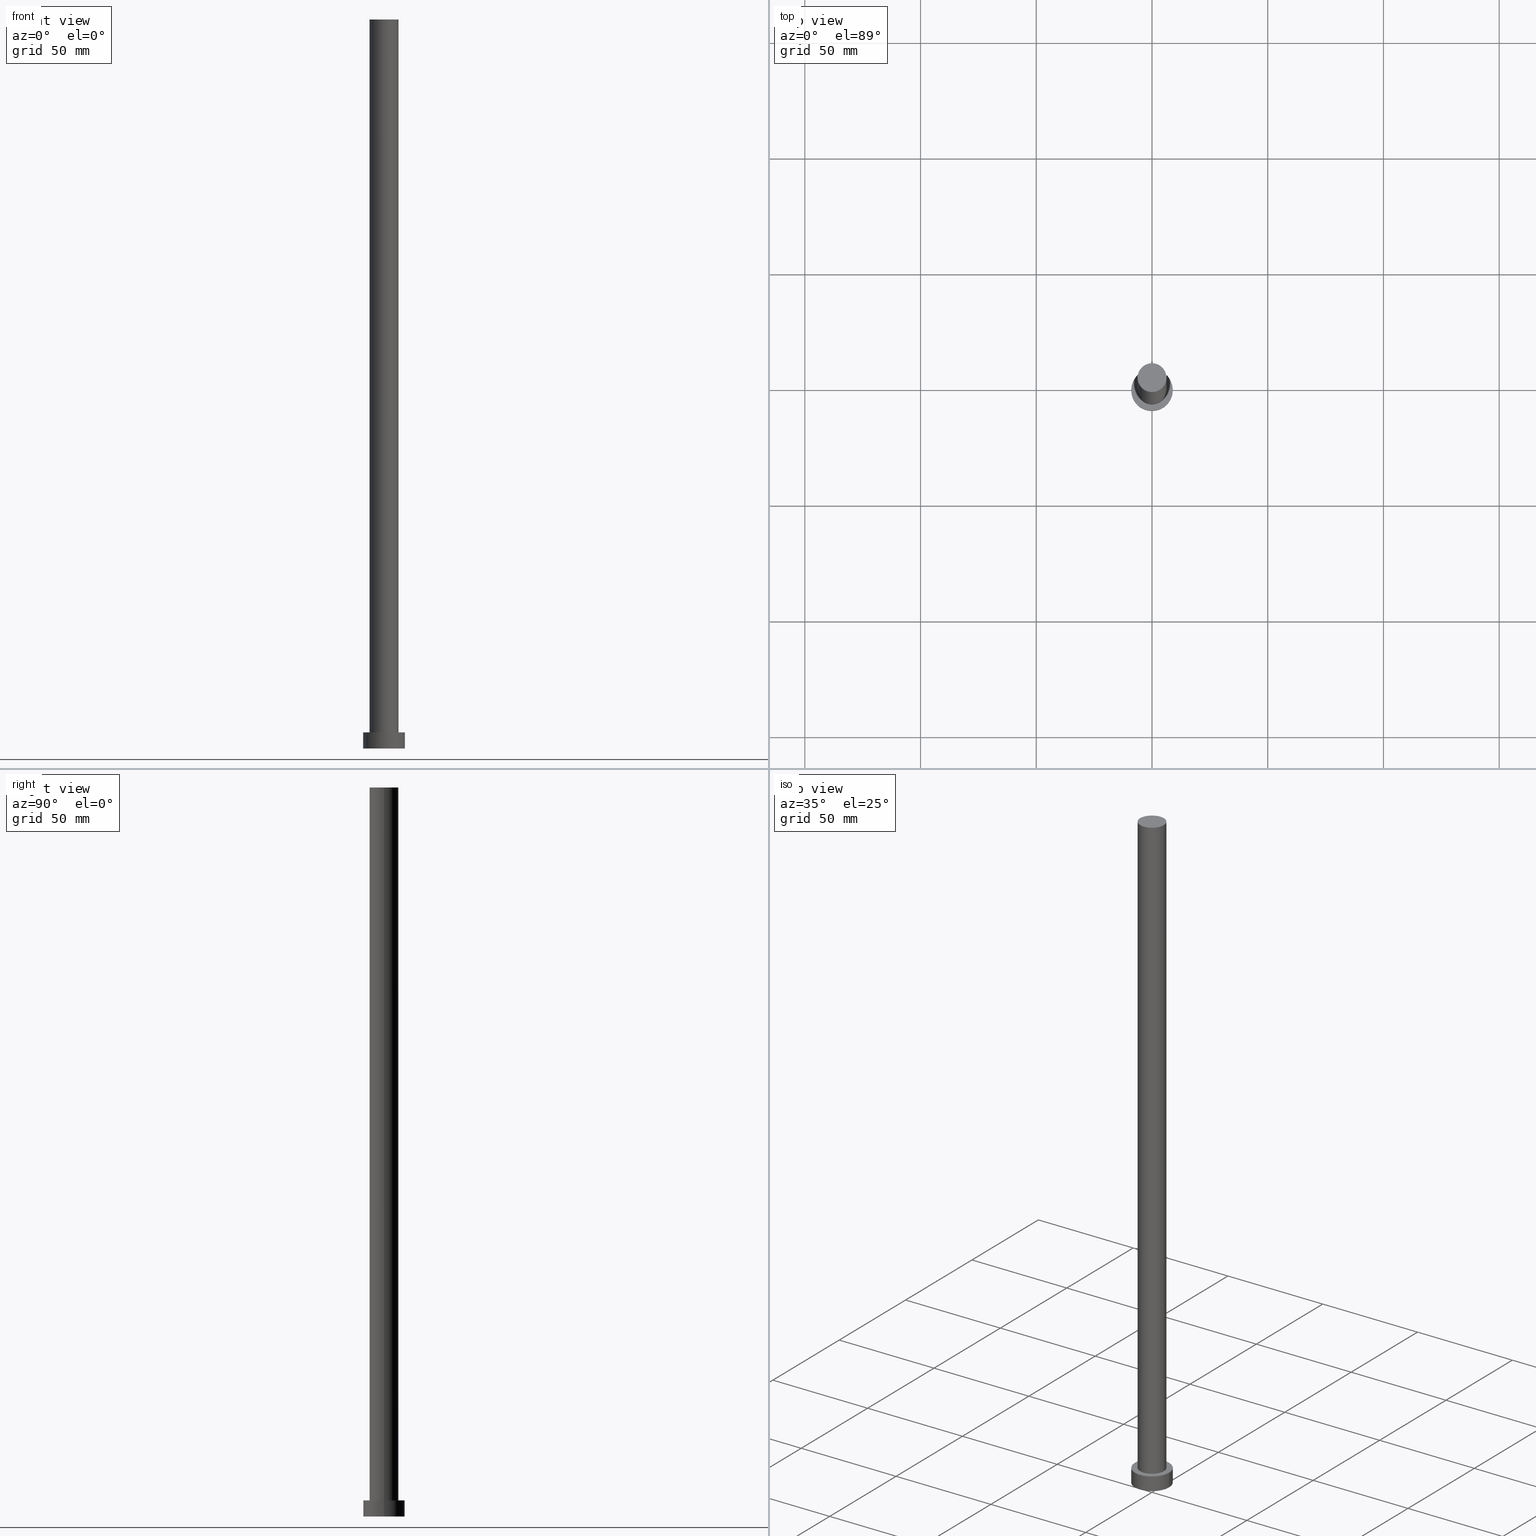
[diagram: canonical four-view strip — front | top / right | iso, engineering-drawing reading convention]
A machine part, canonical four-view strip (front | top / right | iso — engineering-drawing reading convention). The complete STEP part file that produces these views, byte-faithful:
ISO-10303-21;
HEADER;
FILE_DESCRIPTION (( 'STEP AP203' ),
    '1' );
FILE_NAME ('1e17.STEP',
    '2026-02-06T12:35:59',
    ( '' ),
    ( '' ),
    'SwSTEP 2.0',
    'SolidWorks 2019',
    '' );
FILE_SCHEMA (( 'CONFIG_CONTROL_DESIGN' ));
ENDSEC;

DATA;
#1 = VERTEX_POINT ( 'NONE', #12 ) ;
#2 = CYLINDRICAL_SURFACE ( 'NONE', #218, 6.250000000000000000 ) ;
#3 = VECTOR ( 'NONE', #88, 1000.000000000000000 ) ;
#4 = EDGE_CURVE ( 'NONE', #36, #165, #60, .T. ) ;
#5 = ORIENTED_EDGE ( 'NONE', *, *, #101, .T. ) ;
#6 = DIRECTION ( 'NONE',  ( 0.000000000000000000, 0.000000000000000000, 1.000000000000000000 ) ) ;
#7 = CC_DESIGN_DATE_AND_TIME_ASSIGNMENT ( #196, #94, ( #230 ) ) ;
#8 = ORIENTED_EDGE ( 'NONE', *, *, #4, .T. ) ;
#9 = CARTESIAN_POINT ( 'NONE',  ( 6.250000000000000000, 7.654042494670957606E-16, 7.000000000000000000 ) ) ;
#10 = FACE_OUTER_BOUND ( 'NONE', #64, .T. ) ;
#11 = CARTESIAN_POINT ( 'NONE',  ( 0.000000000000000000, 0.000000000000000000, 7.000000000000000000 ) ) ;
#12 = CARTESIAN_POINT ( 'NONE',  ( -6.250000000000000000, 0.000000000000000000, 315.0000000000000000 ) ) ;
#13 = EDGE_LOOP ( 'NONE', ( #156, #148, #222, #175 ) ) ;
#14 = CALENDAR_DATE ( 2026, 6, 2 ) ;
#15 = AXIS2_PLACEMENT_3D ( 'NONE', #241, #247, #67 ) ;
#16 = DATE_AND_TIME ( #14, #186 ) ;
#17 = APPROVAL ( #251, 'NEUR�EN�' ) ;
#18 = APPROVAL_STATUS ( 'not_yet_approved' ) ;
#19 = PERSON_AND_ORGANIZATION_ROLE ( 'creator' ) ;
#20 = CC_DESIGN_SECURITY_CLASSIFICATION ( #230, ( #24 ) ) ;
#21 =( NAMED_UNIT ( * ) PLANE_ANGLE_UNIT ( ) SI_UNIT ( $, .RADIAN. ) );
#22 = AXIS2_PLACEMENT_3D ( 'NONE', #180, #63, #105 ) ;
#23 = PERSON_AND_ORGANIZATION ( #194, #173 ) ;
#24 = PRODUCT_DEFINITION_FORMATION_WITH_SPECIFIED_SOURCE ( 'LIBOVOLN�', '', #157, .NOT_KNOWN. ) ;
#25 = VECTOR ( 'NONE', #206, 1000.000000000000000 ) ;
#26 = DIRECTION ( 'NONE',  ( 1.000000000000000000, 0.000000000000000000, 0.000000000000000000 ) ) ;
#27 = ADVANCED_FACE ( 'NONE', ( #207 ), #124, .T. ) ;
#28 = DIRECTION ( 'NONE',  ( 1.000000000000000000, 0.000000000000000000, 0.000000000000000000 ) ) ;
#29 = DIRECTION ( 'NONE',  ( -1.000000000000000000, 0.000000000000000000, 0.000000000000000000 ) ) ;
#30 = CARTESIAN_POINT ( 'NONE',  ( 6.250000000000000000, 7.654042494670957606E-16, 315.0000000000000000 ) ) ;
#31 = DIRECTION ( 'NONE',  ( 1.000000000000000000, 0.000000000000000000, 0.000000000000000000 ) ) ;
#32 = LOCAL_TIME ( 13, 35, 59.00000000000000000, #96 ) ;
#33 = FACE_OUTER_BOUND ( 'NONE', #211, .T. ) ;
#34 = DIRECTION ( 'NONE',  ( 0.000000000000000000, 0.000000000000000000, 1.000000000000000000 ) ) ;
#35 = DIRECTION ( 'NONE',  ( -0.000000000000000000, -0.000000000000000000, -1.000000000000000000 ) ) ;
#36 = VERTEX_POINT ( 'NONE', #107 ) ;
#37 = PRODUCT_RELATED_PRODUCT_CATEGORY ( 'detail', '', ( #157 ) ) ;
#38 = SHAPE_DEFINITION_REPRESENTATION ( #119, #223 ) ;
#39 = PERSON_AND_ORGANIZATION_ROLE ( 'design_owner' ) ;
#40 = DATE_AND_TIME ( #231, #32 ) ;
#41 = PERSON_AND_ORGANIZATION ( #194, #173 ) ;
#42 = CC_DESIGN_PERSON_AND_ORGANIZATION_ASSIGNMENT ( #178, #171, ( #230 ) ) ;
#43 = AXIS2_PLACEMENT_3D ( 'NONE', #104, #228, #142 ) ;
#44 = AXIS2_PLACEMENT_3D ( 'NONE', #183, #6, #145 ) ;
#45 = FACE_OUTER_BOUND ( 'NONE', #84, .T. ) ;
#46 = ORIENTED_EDGE ( 'NONE', *, *, #161, .F. ) ;
#47 = CARTESIAN_POINT ( 'NONE',  ( 0.000000000000000000, 0.000000000000000000, 7.000000000000000000 ) ) ;
#48 = CARTESIAN_POINT ( 'NONE',  ( 0.000000000000000000, 0.000000000000000000, 315.0000000000000000 ) ) ;
#49 = ORIENTED_EDGE ( 'NONE', *, *, #73, .F. ) ;
#50 = FACE_OUTER_BOUND ( 'NONE', #13, .T. ) ;
#51 = VERTEX_POINT ( 'NONE', #184 ) ;
#52 = APPROVAL_ROLE ( '' ) ;
#53 = ADVANCED_FACE ( 'NONE', ( #187, #10 ), #89, .T. ) ;
#54 = CC_DESIGN_PERSON_AND_ORGANIZATION_ASSIGNMENT ( #56, #19, ( #24 ) ) ;
#55 = ADVANCED_FACE ( 'NONE', ( #130 ), #192, .F. ) ;
#56 = PERSON_AND_ORGANIZATION ( #194, #173 ) ;
#57 = APPLICATION_PROTOCOL_DEFINITION ( 'international standard', 'config_control_design', 1994, #76 ) ;
#58 = ORIENTED_EDGE ( 'NONE', *, *, #176, .T. ) ;
#59 = MECHANICAL_CONTEXT ( 'NONE', #76, 'mechanical' ) ;
#60 = CIRCLE ( 'NONE', #252, 9.000000000000000000 ) ;
#61 = EDGE_CURVE ( 'NONE', #36, #244, #91, .T. ) ;
#62 = ADVANCED_FACE ( 'NONE', ( #33 ), #224, .T. ) ;
#63 = DIRECTION ( 'NONE',  ( -0.000000000000000000, -0.000000000000000000, -1.000000000000000000 ) ) ;
#64 = EDGE_LOOP ( 'NONE', ( #160, #8 ) ) ;
#65 = DIRECTION ( 'NONE',  ( -0.000000000000000000, -0.000000000000000000, -1.000000000000000000 ) ) ;
#66 = ORIENTED_EDGE ( 'NONE', *, *, #176, .F. ) ;
#67 = DIRECTION ( 'NONE',  ( 1.000000000000000000, 0.000000000000000000, 0.000000000000000000 ) ) ;
#68 = CARTESIAN_POINT ( 'NONE',  ( 0.000000000000000000, 0.000000000000000000, 7.000000000000000000 ) ) ;
#69 = DIRECTION ( 'NONE',  ( -1.000000000000000000, 0.000000000000000000, 0.000000000000000000 ) ) ;
#70 = EDGE_LOOP ( 'NONE', ( #112, #66, #118, #181 ) ) ;
#71 = CC_DESIGN_APPROVAL ( #125, ( #230 ) ) ;
#72 = PERSON_AND_ORGANIZATION ( #194, #173 ) ;
#73 = EDGE_CURVE ( 'NONE', #244, #168, #133, .T. ) ;
#74 = APPROVAL_PERSON_ORGANIZATION ( #97, #17, #78 ) ;
#75 = COORDINATED_UNIVERSAL_TIME_OFFSET ( 1, 0, .AHEAD. ) ;
#76 = APPLICATION_CONTEXT ( 'configuration controlled 3d designs of mechanical parts and assemblies' ) ;
#77 = COORDINATED_UNIVERSAL_TIME_OFFSET ( 1, 0, .AHEAD. ) ;
#78 = APPROVAL_ROLE ( '' ) ;
#79 = PERSON_AND_ORGANIZATION_ROLE ( 'creator' ) ;
#80 = CC_DESIGN_PERSON_AND_ORGANIZATION_ASSIGNMENT ( #23, #213, ( #24 ) ) ;
#81 = APPROVAL_PERSON_ORGANIZATION ( #72, #125, #52 ) ;
#82 = UNCERTAINTY_MEASURE_WITH_UNIT (LENGTH_MEASURE( 1.000000000000000082E-05 ), #93, 'distance_accuracy_value', 'NONE');
#83 = DIRECTION ( 'NONE',  ( 0.000000000000000000, 0.000000000000000000, 1.000000000000000000 ) ) ;
#84 = EDGE_LOOP ( 'NONE', ( #92, #146, #235, #5 ) ) ;
#85 = DIRECTION ( 'NONE',  ( 1.000000000000000000, 0.000000000000000000, 0.000000000000000000 ) ) ;
#86 = ORIENTED_EDGE ( 'NONE', *, *, #236, .T. ) ;
#87 = CIRCLE ( 'NONE', #138, 6.250000000000000000 ) ;
#88 = DIRECTION ( 'NONE',  ( -0.000000000000000000, -0.000000000000000000, -1.000000000000000000 ) ) ;
#89 = PLANE ( 'NONE',  #240 ) ;
#90 = LINE ( 'NONE', #162, #25 ) ;
#91 = LINE ( 'NONE', #167, #3 ) ;
#92 = ORIENTED_EDGE ( 'NONE', *, *, #61, .F. ) ;
#93 =( LENGTH_UNIT ( ) NAMED_UNIT ( * ) SI_UNIT ( .MILLI., .METRE. ) );
#94 = DATE_TIME_ROLE ( 'classification_date' ) ;
#95 = COORDINATED_UNIVERSAL_TIME_OFFSET ( 1, 0, .AHEAD. ) ;
#96 = COORDINATED_UNIVERSAL_TIME_OFFSET ( 1, 0, .AHEAD. ) ;
#97 = PERSON_AND_ORGANIZATION ( #194, #173 ) ;
#98 = ADVANCED_FACE ( 'NONE', ( #50 ), #201, .T. ) ;
#99 = PERSON_AND_ORGANIZATION ( #194, #173 ) ;
#100 = CC_DESIGN_PERSON_AND_ORGANIZATION_ASSIGNMENT ( #137, #39, ( #157 ) ) ;
#101 = EDGE_CURVE ( 'NONE', #168, #244, #200, .T. ) ;
#102 = CC_DESIGN_APPROVAL ( #17, ( #24 ) ) ;
#103 = CIRCLE ( 'NONE', #44, 9.000000000000000000 ) ;
#104 = CARTESIAN_POINT ( 'NONE',  ( 0.000000000000000000, 0.000000000000000000, 315.0000000000000000 ) ) ;
#105 = DIRECTION ( 'NONE',  ( -1.000000000000000000, 0.000000000000000000, 0.000000000000000000 ) ) ;
#106 = ADVANCED_FACE ( 'NONE', ( #45 ), #127, .T. ) ;
#107 = CARTESIAN_POINT ( 'NONE',  ( 9.000000000000000000, 1.102182119232617714E-15, 7.000000000000000000 ) ) ;
#108 = DIRECTION ( 'NONE',  ( -0.000000000000000000, -0.000000000000000000, -1.000000000000000000 ) ) ;
#109 = ORIENTED_EDGE ( 'NONE', *, *, #153, .F. ) ;
#110 = AXIS2_PLACEMENT_3D ( 'NONE', #220, #147, #26 ) ;
#111 = CARTESIAN_POINT ( 'NONE',  ( 0.000000000000000000, 0.000000000000000000, 0.000000000000000000 ) ) ;
#112 = ORIENTED_EDGE ( 'NONE', *, *, #236, .F. ) ;
#113 = CARTESIAN_POINT ( 'NONE',  ( -9.000000000000000000, 0.000000000000000000, 7.000000000000000000 ) ) ;
#114 = VERTEX_POINT ( 'NONE', #9 ) ;
#115 = APPROVAL_PERSON_ORGANIZATION ( #99, #135, #136 ) ;
#116 = EDGE_LOOP ( 'NONE', ( #46, #86, #123, #163 ) ) ;
#117 = APPROVAL_DATE_TIME ( #16, #125 ) ;
#118 = ORIENTED_EDGE ( 'NONE', *, *, #169, .T. ) ;
#119 = PRODUCT_DEFINITION_SHAPE ( 'NONE', 'NONE',  #143 ) ;
#120 = CLOSED_SHELL ( 'NONE', ( #27, #98, #106, #53, #55, #217, #62 ) ) ;
#121 = CALENDAR_DATE ( 2026, 6, 2 ) ;
#122 = DIRECTION ( 'NONE',  ( 1.000000000000000000, 0.000000000000000000, 0.000000000000000000 ) ) ;
#123 = ORIENTED_EDGE ( 'NONE', *, *, #153, .T. ) ;
#124 = CYLINDRICAL_SURFACE ( 'NONE', #249, 6.250000000000000000 ) ;
#125 = APPROVAL ( #18, 'NEUR�EN�' ) ;
#126 = CIRCLE ( 'NONE', #15, 6.250000000000000000 ) ;
#127 = CYLINDRICAL_SURFACE ( 'NONE', #22, 9.000000000000000000 ) ;
#128 = DIRECTION ( 'NONE',  ( 0.000000000000000000, 0.000000000000000000, 1.000000000000000000 ) ) ;
#129 = LINE ( 'NONE', #30, #250 ) ;
#130 = FACE_OUTER_BOUND ( 'NONE', #225, .T. ) ;
#131 = DIRECTION ( 'NONE',  ( 0.000000000000000000, 0.000000000000000000, 1.000000000000000000 ) ) ;
#132 = EDGE_LOOP ( 'NONE', ( #242, #109 ) ) ;
#133 = CIRCLE ( 'NONE', #182, 9.000000000000000000 ) ;
#134 = VECTOR ( 'NONE', #65, 1000.000000000000000 ) ;
#135 = APPROVAL ( #215, 'NEUR�EN�' ) ;
#136 = APPROVAL_ROLE ( '' ) ;
#137 = PERSON_AND_ORGANIZATION ( #194, #173 ) ;
#138 = AXIS2_PLACEMENT_3D ( 'NONE', #188, #83, #28 ) ;
#139 = APPLICATION_PROTOCOL_DEFINITION ( 'international standard', 'config_control_design', 1994, #179 ) ;
#140 = AXIS2_PLACEMENT_3D ( 'NONE', #111, #131, #122 ) ;
#141 = AXIS2_PLACEMENT_3D ( 'NONE', #233, #237, #253 ) ;
#142 = DIRECTION ( 'NONE',  ( 1.000000000000000000, 0.000000000000000000, -0.000000000000000000 ) ) ;
#143 = PRODUCT_DEFINITION ( 'NEZN�M�', '', #24, #202 ) ;
#144 = VERTEX_POINT ( 'NONE', #245 ) ;
#145 = DIRECTION ( 'NONE',  ( 1.000000000000000000, 0.000000000000000000, 0.000000000000000000 ) ) ;
#146 = ORIENTED_EDGE ( 'NONE', *, *, #193, .F. ) ;
#147 = DIRECTION ( 'NONE',  ( 0.000000000000000000, 0.000000000000000000, 1.000000000000000000 ) ) ;
#148 = ORIENTED_EDGE ( 'NONE', *, *, #61, .T. ) ;
#149 = CARTESIAN_POINT ( 'NONE',  ( 9.000000000000000000, 1.102182119232617714E-15, 0.000000000000000000 ) ) ;
#150 = DIRECTION ( 'NONE',  ( 0.000000000000000000, 0.000000000000000000, 1.000000000000000000 ) ) ;
#151 = EDGE_CURVE ( 'NONE', #51, #114, #152, .T. ) ;
#152 = CIRCLE ( 'NONE', #190, 6.250000000000000000 ) ;
#153 = EDGE_CURVE ( 'NONE', #114, #51, #126, .T. ) ;
#154 = DATE_AND_TIME ( #214, #239 ) ;
#155 = COORDINATED_UNIVERSAL_TIME_OFFSET ( 1, 0, .AHEAD. ) ;
#156 = ORIENTED_EDGE ( 'NONE', *, *, #4, .F. ) ;
#157 = PRODUCT ( '1e17', '1e17', '', ( #59 ) ) ;
#158 = LOCAL_TIME ( 13, 35, 59.00000000000000000, #155 ) ;
#159 = DIRECTION ( 'NONE',  ( -0.000000000000000000, -0.000000000000000000, -1.000000000000000000 ) ) ;
#160 = ORIENTED_EDGE ( 'NONE', *, *, #193, .T. ) ;
#161 = EDGE_CURVE ( 'NONE', #144, #1, #232, .T. ) ;
#162 = CARTESIAN_POINT ( 'NONE',  ( -9.000000000000000000, 0.000000000000000000, 7.000000000000000000 ) ) ;
#163 = ORIENTED_EDGE ( 'NONE', *, *, #169, .F. ) ;
#164 = DIRECTION ( 'NONE',  ( 0.000000000000000000, 0.000000000000000000, 1.000000000000000000 ) ) ;
#165 = VERTEX_POINT ( 'NONE', #113 ) ;
#166 = FACE_OUTER_BOUND ( 'NONE', #70, .T. ) ;
#167 = CARTESIAN_POINT ( 'NONE',  ( 9.000000000000000000, 1.102182119232617714E-15, 7.000000000000000000 ) ) ;
#168 = VERTEX_POINT ( 'NONE', #243 ) ;
#169 = EDGE_CURVE ( 'NONE', #1, #51, #191, .T. ) ;
#170 = CC_DESIGN_PERSON_AND_ORGANIZATION_ASSIGNMENT ( #41, #79, ( #143 ) ) ;
#171 = PERSON_AND_ORGANIZATION_ROLE ( 'classification_officer' ) ;
#172 = CALENDAR_DATE ( 2026, 6, 2 ) ;
#173 = ORGANIZATION ( 'NEUR�EN�', 'NEUR�EN�', '' ) ;
#174 = DATE_TIME_ROLE ( 'creation_date' ) ;
#175 = ORIENTED_EDGE ( 'NONE', *, *, #212, .F. ) ;
#176 = EDGE_CURVE ( 'NONE', #1, #144, #87, .T. ) ;
#177 = SECURITY_CLASSIFICATION_LEVEL ( 'unclassified' ) ;
#178 = PERSON_AND_ORGANIZATION ( #194, #173 ) ;
#179 = APPLICATION_CONTEXT ( 'configuration controlled 3d designs of mechanical parts and assemblies' ) ;
#180 = CARTESIAN_POINT ( 'NONE',  ( 0.000000000000000000, 0.000000000000000000, 7.000000000000000000 ) ) ;
#181 = ORIENTED_EDGE ( 'NONE', *, *, #151, .T. ) ;
#182 = AXIS2_PLACEMENT_3D ( 'NONE', #208, #164, #210 ) ;
#183 = CARTESIAN_POINT ( 'NONE',  ( 0.000000000000000000, 0.000000000000000000, 7.000000000000000000 ) ) ;
#184 = CARTESIAN_POINT ( 'NONE',  ( -6.250000000000000000, 0.000000000000000000, 7.000000000000000000 ) ) ;
#185 = DIRECTION ( 'NONE',  ( 0.000000000000000000, 0.000000000000000000, 1.000000000000000000 ) ) ;
#186 = LOCAL_TIME ( 13, 35, 59.00000000000000000, #77 ) ;
#187 = FACE_BOUND ( 'NONE', #132, .T. ) ;
#188 = CARTESIAN_POINT ( 'NONE',  ( 0.000000000000000000, 0.000000000000000000, 315.0000000000000000 ) ) ;
#189 = DIRECTION ( 'NONE',  ( 1.000000000000000000, 0.000000000000000000, -0.000000000000000000 ) ) ;
#190 = AXIS2_PLACEMENT_3D ( 'NONE', #11, #185, #85 ) ;
#191 = LINE ( 'NONE', #203, #134 ) ;
#192 = PLANE ( 'NONE',  #238 ) ;
#193 = EDGE_CURVE ( 'NONE', #165, #36, #103, .T. ) ;
#194 = PERSON ( 'NEUR�EN�', 'NEUR�EN�', 'NEUR�EN�', ('NEUR�EN�'), ('NEUR�EN�'), ('NEUR�EN�') ) ;
#195 = CC_DESIGN_DATE_AND_TIME_ASSIGNMENT ( #234, #174, ( #143 ) ) ;
#196 = DATE_AND_TIME ( #172, #219 ) ;
#197 = MANIFOLD_SOLID_BREP ( 'P�idat vysunut�m3', #120 ) ;
#198 =( NAMED_UNIT ( * ) SI_UNIT ( $, .STERADIAN. ) SOLID_ANGLE_UNIT ( ) );
#199 = APPROVAL_DATE_TIME ( #40, #17 ) ;
#200 = CIRCLE ( 'NONE', #140, 9.000000000000000000 ) ;
#201 = CYLINDRICAL_SURFACE ( 'NONE', #205, 9.000000000000000000 ) ;
#202 = DESIGN_CONTEXT ( 'detailed design', #179, 'design' ) ;
#203 = CARTESIAN_POINT ( 'NONE',  ( -6.250000000000000000, 0.000000000000000000, 315.0000000000000000 ) ) ;
#204 = CARTESIAN_POINT ( 'NONE',  ( 0.000000000000000000, 0.000000000000000000, 315.0000000000000000 ) ) ;
#205 = AXIS2_PLACEMENT_3D ( 'NONE', #47, #35, #226 ) ;
#206 = DIRECTION ( 'NONE',  ( -0.000000000000000000, -0.000000000000000000, -1.000000000000000000 ) ) ;
#207 = FACE_OUTER_BOUND ( 'NONE', #116, .T. ) ;
#208 = CARTESIAN_POINT ( 'NONE',  ( 0.000000000000000000, 0.000000000000000000, 0.000000000000000000 ) ) ;
#209 = CARTESIAN_POINT ( 'NONE',  ( 0.000000000000000000, 0.000000000000000000, 0.000000000000000000 ) ) ;
#210 = DIRECTION ( 'NONE',  ( 1.000000000000000000, 0.000000000000000000, 0.000000000000000000 ) ) ;
#211 = EDGE_LOOP ( 'NONE', ( #58, #229 ) ) ;
#212 = EDGE_CURVE ( 'NONE', #165, #168, #90, .T. ) ;
#213 = PERSON_AND_ORGANIZATION_ROLE ( 'design_supplier' ) ;
#214 = CALENDAR_DATE ( 2026, 6, 2 ) ;
#215 = APPROVAL_STATUS ( 'not_yet_approved' ) ;
#216 = APPROVAL_DATE_TIME ( #154, #135 ) ;
#217 = ADVANCED_FACE ( 'NONE', ( #166 ), #2, .T. ) ;
#218 = AXIS2_PLACEMENT_3D ( 'NONE', #48, #159, #69 ) ;
#219 = LOCAL_TIME ( 13, 35, 59.00000000000000000, #95 ) ;
#220 = CARTESIAN_POINT ( 'NONE',  ( 0.000000000000000000, 0.000000000000000000, 315.0000000000000000 ) ) ;
#221 =( GEOMETRIC_REPRESENTATION_CONTEXT ( 3 ) GLOBAL_UNCERTAINTY_ASSIGNED_CONTEXT ( ( #82 ) ) GLOBAL_UNIT_ASSIGNED_CONTEXT ( ( #93, #21, #198 ) ) REPRESENTATION_CONTEXT ( 'NONE', 'WORKASPACE' ) );
#222 = ORIENTED_EDGE ( 'NONE', *, *, #73, .T. ) ;
#223 = ADVANCED_BREP_SHAPE_REPRESENTATION ( '1e17', ( #197, #141 ), #221 ) ;
#224 = PLANE ( 'NONE',  #43 ) ;
#225 = EDGE_LOOP ( 'NONE', ( #254, #49 ) ) ;
#226 = DIRECTION ( 'NONE',  ( -1.000000000000000000, 0.000000000000000000, 0.000000000000000000 ) ) ;
#227 = DIRECTION ( 'NONE',  ( -0.000000000000000000, -0.000000000000000000, -1.000000000000000000 ) ) ;
#228 = DIRECTION ( 'NONE',  ( 0.000000000000000000, 0.000000000000000000, 1.000000000000000000 ) ) ;
#229 = ORIENTED_EDGE ( 'NONE', *, *, #161, .T. ) ;
#230 = SECURITY_CLASSIFICATION ( '', '', #177 ) ;
#231 = CALENDAR_DATE ( 2026, 6, 2 ) ;
#232 = CIRCLE ( 'NONE', #110, 6.250000000000000000 ) ;
#233 = CARTESIAN_POINT ( 'NONE',  ( 0.000000000000000000, 0.000000000000000000, 0.000000000000000000 ) ) ;
#234 = DATE_AND_TIME ( #121, #158 ) ;
#235 = ORIENTED_EDGE ( 'NONE', *, *, #212, .T. ) ;
#236 = EDGE_CURVE ( 'NONE', #144, #114, #129, .T. ) ;
#237 = DIRECTION ( 'NONE',  ( 0.000000000000000000, 0.000000000000000000, 1.000000000000000000 ) ) ;
#238 = AXIS2_PLACEMENT_3D ( 'NONE', #209, #34, #189 ) ;
#239 = LOCAL_TIME ( 13, 35, 59.00000000000000000, #75 ) ;
#240 = AXIS2_PLACEMENT_3D ( 'NONE', #68, #150, #248 ) ;
#241 = CARTESIAN_POINT ( 'NONE',  ( 0.000000000000000000, 0.000000000000000000, 7.000000000000000000 ) ) ;
#242 = ORIENTED_EDGE ( 'NONE', *, *, #151, .F. ) ;
#243 = CARTESIAN_POINT ( 'NONE',  ( -9.000000000000000000, 0.000000000000000000, 0.000000000000000000 ) ) ;
#244 = VERTEX_POINT ( 'NONE', #149 ) ;
#245 = CARTESIAN_POINT ( 'NONE',  ( 6.250000000000000000, 7.654042494670957606E-16, 315.0000000000000000 ) ) ;
#246 = CARTESIAN_POINT ( 'NONE',  ( 0.000000000000000000, 0.000000000000000000, 7.000000000000000000 ) ) ;
#247 = DIRECTION ( 'NONE',  ( 0.000000000000000000, 0.000000000000000000, 1.000000000000000000 ) ) ;
#248 = DIRECTION ( 'NONE',  ( 1.000000000000000000, 0.000000000000000000, -0.000000000000000000 ) ) ;
#249 = AXIS2_PLACEMENT_3D ( 'NONE', #204, #227, #29 ) ;
#250 = VECTOR ( 'NONE', #108, 1000.000000000000000 ) ;
#251 = APPROVAL_STATUS ( 'not_yet_approved' ) ;
#252 = AXIS2_PLACEMENT_3D ( 'NONE', #246, #128, #31 ) ;
#253 = DIRECTION ( 'NONE',  ( 1.000000000000000000, 0.000000000000000000, 0.000000000000000000 ) ) ;
#254 = ORIENTED_EDGE ( 'NONE', *, *, #101, .F. ) ;
#255 = CC_DESIGN_APPROVAL ( #135, ( #143 ) ) ;
ENDSEC;
END-ISO-10303-21;
